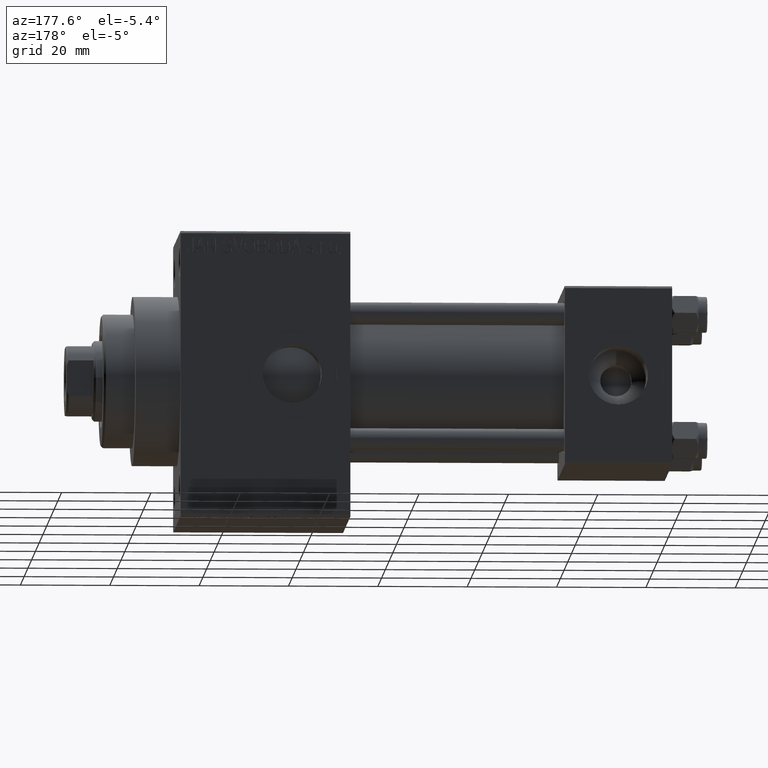
[diagram: clean part render]
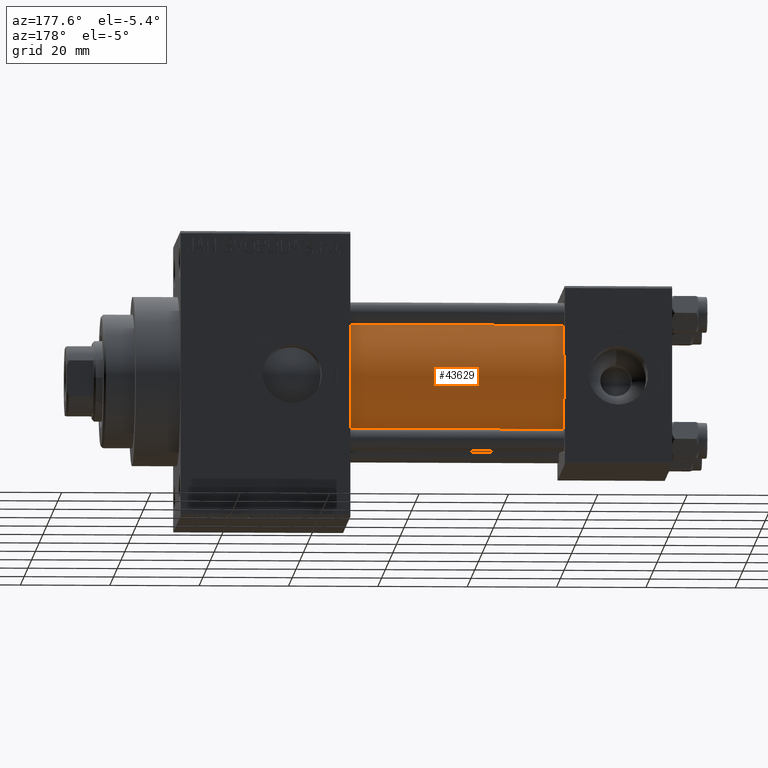
[diagram: same view with one face highlighted and labeled with its STEP entity id]
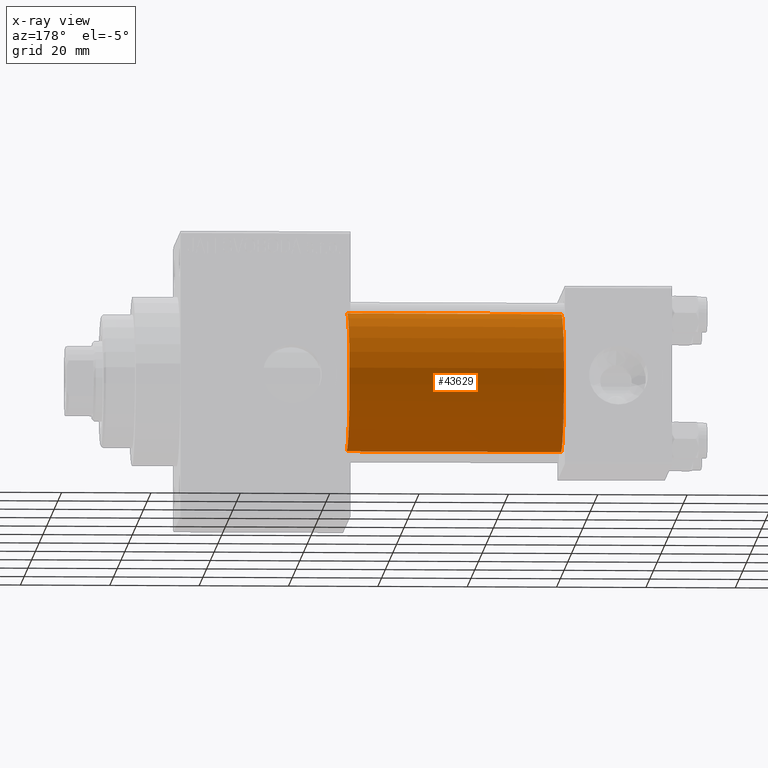
[diagram: x-ray of the same camera — body ghosted, the highlighted face saturated]
A machine part, auxiliary view. The second image highlights one B-rep face of the part: STEP entity #43629.
The next image is the same camera in x-ray: the body ghosted, the highlighted face saturated — about 0% of this face is hidden behind the body in this view.
In plain terms, the highlighted cylindrical surface (partial cylindrical patch) has radius 15.5 mm, axis along (-1, -0, -0).
Its self-contained STEP definition (entity closure, byte-faithful):
#877 = ORIENTED_EDGE ( 'NONE', *, *, #45895, .T. ) ;
#2185 = EDGE_CURVE ( 'NONE', #5874, #42589, #26190, .T. ) ;
#4262 = AXIS2_PLACEMENT_3D ( 'NONE', #15412, #34834, #45224 ) ;
#5874 = VERTEX_POINT ( 'NONE', #21523 ) ;
#5937 = DIRECTION ( 'NONE',  ( -1.000000000000000000, -0.000000000000000000, -0.000000000000000000 ) ) ;
#13069 = CARTESIAN_POINT ( 'NONE',  ( 72.00000000000001421, -7.038826752868131828E-16, -15.50000000000000000 ) ) ;
#13232 = AXIS2_PLACEMENT_3D ( 'NONE', #31760, #47048, #20418 ) ;
#15412 = CARTESIAN_POINT ( 'NONE',  ( 24.00000000000000000, -2.602085213965210642E-15, 0.000000000000000000 ) ) ;
#17142 = EDGE_CURVE ( 'NONE', #19242, #5874, #35229, .T. ) ;
#17442 = EDGE_LOOP ( 'NONE', ( #31056, #877, #45032, #38691 ) ) ;
#18120 = VECTOR ( 'NONE', #48388, 1000.000000000000000 ) ;
#18137 = CYLINDRICAL_SURFACE ( 'NONE', #43600, 15.50000000000000000 ) ;
#19242 = VERTEX_POINT ( 'NONE', #40667 ) ;
#20418 = DIRECTION ( 'NONE',  ( 0.000000000000000000, 0.000000000000000000, -1.000000000000000000 ) ) ;
#21523 = CARTESIAN_POINT ( 'NONE',  ( 72.00000000000001421, -2.602085213965210642E-15, 15.50000000000000000 ) ) ;
#23402 = VERTEX_POINT ( 'NONE', #44948 ) ;
#24374 = LINE ( 'NONE', #13069, #32681 ) ;
#24689 = CIRCLE ( 'NONE', #4262, 15.50000000000000000 ) ;
#26190 = LINE ( 'NONE', #37767, #18120 ) ;
#29242 = CARTESIAN_POINT ( 'NONE',  ( 72.00000000000001421, -2.602085213965210642E-15, 0.000000000000000000 ) ) ;
#31056 = ORIENTED_EDGE ( 'NONE', *, *, #17142, .F. ) ;
#31760 = CARTESIAN_POINT ( 'NONE',  ( 72.00000000000001421, -2.602085213965210642E-15, 0.000000000000000000 ) ) ;
#32681 = VECTOR ( 'NONE', #5937, 1000.000000000000000 ) ;
#33164 = DIRECTION ( 'NONE',  ( -1.000000000000000000, -0.000000000000000000, -0.000000000000000000 ) ) ;
#33658 = FACE_OUTER_BOUND ( 'NONE', #17442, .T. ) ;
#34834 = DIRECTION ( 'NONE',  ( 1.000000000000000000, 0.000000000000000000, 0.000000000000000000 ) ) ;
#35229 = CIRCLE ( 'NONE', #13232, 15.50000000000000000 ) ;
#37767 = CARTESIAN_POINT ( 'NONE',  ( 72.00000000000001421, -2.602085213965210642E-15, 15.50000000000000000 ) ) ;
#38691 = ORIENTED_EDGE ( 'NONE', *, *, #2185, .F. ) ;
#40667 = CARTESIAN_POINT ( 'NONE',  ( 72.00000000000001421, -7.038826752868131828E-16, -15.50000000000000000 ) ) ;
#42339 = EDGE_CURVE ( 'NONE', #23402, #42589, #24689, .T. ) ;
#42589 = VERTEX_POINT ( 'NONE', #43942 ) ;
#43600 = AXIS2_PLACEMENT_3D ( 'NONE', #29242, #33164, #44267 ) ;
#43629 = ADVANCED_FACE ( 'NONE', ( #33658 ), #18137, .T. ) ;
#43942 = CARTESIAN_POINT ( 'NONE',  ( 24.00000000000000000, -2.602085213965210642E-15, 15.50000000000000000 ) ) ;
#44267 = DIRECTION ( 'NONE',  ( 0.000000000000000000, 0.000000000000000000, 1.000000000000000000 ) ) ;
#44948 = CARTESIAN_POINT ( 'NONE',  ( 24.00000000000000000, -7.038826752868131828E-16, -15.50000000000000000 ) ) ;
#45032 = ORIENTED_EDGE ( 'NONE', *, *, #42339, .T. ) ;
#45224 = DIRECTION ( 'NONE',  ( 0.000000000000000000, 0.000000000000000000, 1.000000000000000000 ) ) ;
#45895 = EDGE_CURVE ( 'NONE', #19242, #23402, #24374, .T. ) ;
#47048 = DIRECTION ( 'NONE',  ( 1.000000000000000000, 0.000000000000000000, 0.000000000000000000 ) ) ;
#48388 = DIRECTION ( 'NONE',  ( -1.000000000000000000, -0.000000000000000000, -0.000000000000000000 ) ) ;